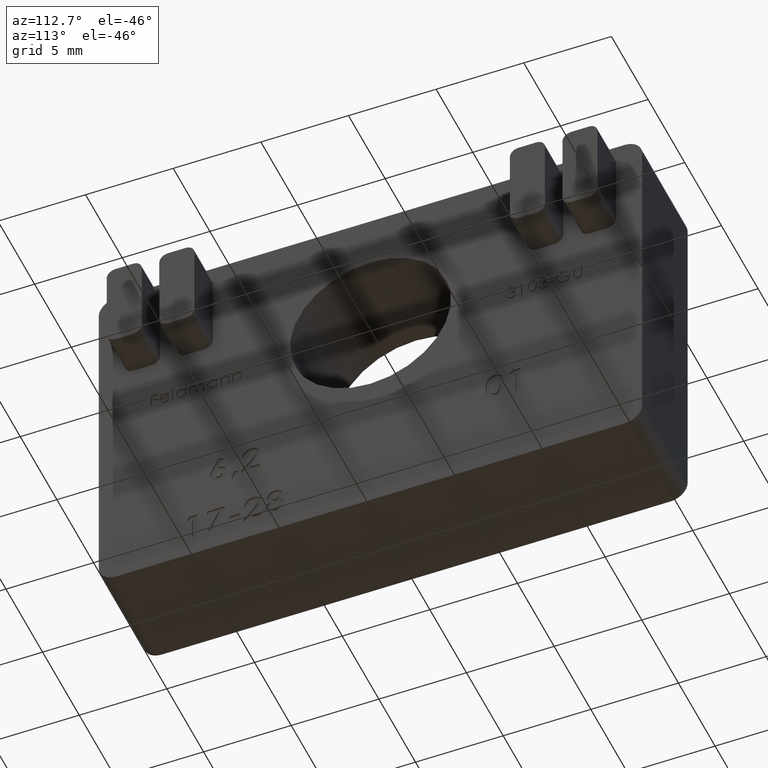
[diagram: clean part render]
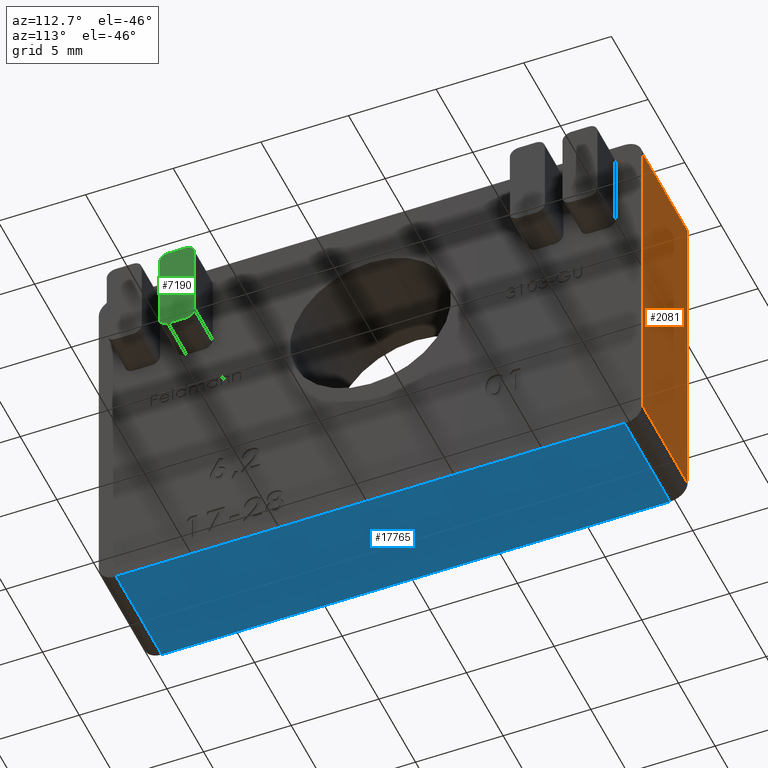
[diagram: same view with three faces highlighted in distinct colors, each labeled with its STEP entity id]
A machine part, auxiliary view with three faces highlighted in distinct colors.
Their STEP definitions:

[orange] entity #2081 — the highlighted planar face has unit normal (0, -1, 0).
#1908 = EDGE_LOOP ( 'NONE', ( #19513, #17515, #5127, #13391 ) ) ;
#2081 = ADVANCED_FACE ( 'NONE', ( #19953 ), #16869, .F. ) ;
#2174 = VERTEX_POINT ( 'NONE', #7096 ) ;
#4001 = CARTESIAN_POINT ( 'NONE',  ( 3.100000000000000089, 15.50000000000000355, 9.550000000000006040 ) ) ;
#4761 = LINE ( 'NONE', #4001, #20109 ) ;
#4869 = CARTESIAN_POINT ( 'NONE',  ( 3.100000000000000089, 15.50000000000000355, -9.549999999999991829 ) ) ;
#5127 = ORIENTED_EDGE ( 'NONE', *, *, #19994, .F. ) ;
#5179 = CARTESIAN_POINT ( 'NONE',  ( -3.100000000000000089, 15.50000000000000355, 9.550000000000006040 ) ) ;
#5324 = DIRECTION ( 'NONE',  ( 0.000000000000000000, -1.000000000000000000, 0.000000000000000000 ) ) ;
#6664 = DIRECTION ( 'NONE',  ( 0.000000000000000000, -0.000000000000000000, -1.000000000000000000 ) ) ;
#7096 = CARTESIAN_POINT ( 'NONE',  ( 3.100000000000000089, 15.50000000000000355, -9.549999999999991829 ) ) ;
#7549 = LINE ( 'NONE', #4869, #10999 ) ;
#7938 = CARTESIAN_POINT ( 'NONE',  ( 3.100000000000000089, 15.50000000000000355, 9.550000000000006040 ) ) ;
#8436 = CARTESIAN_POINT ( 'NONE',  ( 3.100000000000000089, 15.50000000000000355, 9.550000000000006040 ) ) ;
#10152 = CARTESIAN_POINT ( 'NONE',  ( 3.100000000000000089, 15.50000000000000355, 9.550000000000006040 ) ) ;
#10425 = CARTESIAN_POINT ( 'NONE',  ( -3.100000000000000089, 15.50000000000000355, 9.550000000000006040 ) ) ;
#10666 = DIRECTION ( 'NONE',  ( -0.000000000000000000, -0.000000000000000000, 1.000000000000000000 ) ) ;
#10921 = VERTEX_POINT ( 'NONE', #10152 ) ;
#10999 = VECTOR ( 'NONE', #19900, 1000.000000000000000 ) ;
#11283 = VERTEX_POINT ( 'NONE', #10425 ) ;
#11348 = DIRECTION ( 'NONE',  ( -1.000000000000000000, -0.000000000000000000, -0.000000000000000000 ) ) ;
#12713 = VECTOR ( 'NONE', #11348, 1000.000000000000000 ) ;
#13255 = EDGE_CURVE ( 'NONE', #2174, #19584, #7549, .T. ) ;
#13391 = ORIENTED_EDGE ( 'NONE', *, *, #13255, .T. ) ;
#13642 = EDGE_CURVE ( 'NONE', #19584, #11283, #15776, .T. ) ;
#15106 = AXIS2_PLACEMENT_3D ( 'NONE', #8436, #5324, #6664 ) ;
#15776 = LINE ( 'NONE', #5179, #17083 ) ;
#16869 = PLANE ( 'NONE',  #15106 ) ;
#17083 = VECTOR ( 'NONE', #18287, 1000.000000000000000 ) ;
#17215 = LINE ( 'NONE', #7938, #12713 ) ;
#17515 = ORIENTED_EDGE ( 'NONE', *, *, #19856, .F. ) ;
#18287 = DIRECTION ( 'NONE',  ( -0.000000000000000000, -0.000000000000000000, 1.000000000000000000 ) ) ;
#19045 = CARTESIAN_POINT ( 'NONE',  ( -3.100000000000000089, 15.50000000000000355, -9.549999999999991829 ) ) ;
#19513 = ORIENTED_EDGE ( 'NONE', *, *, #13642, .T. ) ;
#19584 = VERTEX_POINT ( 'NONE', #19045 ) ;
#19856 = EDGE_CURVE ( 'NONE', #10921, #11283, #17215, .T. ) ;
#19900 = DIRECTION ( 'NONE',  ( -1.000000000000000000, -0.000000000000000000, -0.000000000000000000 ) ) ;
#19953 = FACE_OUTER_BOUND ( 'NONE', #1908, .T. ) ;
#19994 = EDGE_CURVE ( 'NONE', #2174, #10921, #4761, .T. ) ;
#20109 = VECTOR ( 'NONE', #10666, 1000.000000000000000 ) ;

[blue] entity #17765 — the highlighted planar face has unit normal (0, -0, 1).
#710 = DIRECTION ( 'NONE',  ( -0.000000000000000000, 1.000000000000000000, 2.392722035830078972E-16 ) ) ;
#2246 = EDGE_CURVE ( 'NONE', #14741, #18322, #21014, .T. ) ;
#3858 = CARTESIAN_POINT ( 'NONE',  ( -3.100000000000000089, 14.50000000000000178, -10.54999999999999361 ) ) ;
#4717 = AXIS2_PLACEMENT_3D ( 'NONE', #10223, #6750, #22005 ) ;
#4824 = LINE ( 'NONE', #20546, #13303 ) ;
#4902 = VECTOR ( 'NONE', #5972, 1000.000000000000000 ) ;
#5114 = VECTOR ( 'NONE', #710, 1000.000000000000000 ) ;
#5972 = DIRECTION ( 'NONE',  ( -1.000000000000000000, -0.000000000000000000, -0.000000000000000000 ) ) ;
#6521 = VERTEX_POINT ( 'NONE', #19890 ) ;
#6750 = DIRECTION ( 'NONE',  ( 0.000000000000000000, -2.392722035830078479E-16, 1.000000000000000000 ) ) ;
#7600 = ORIENTED_EDGE ( 'NONE', *, *, #14378, .T. ) ;
#8954 = DIRECTION ( 'NONE',  ( -0.000000000000000000, 1.000000000000000000, 2.392722035830078972E-16 ) ) ;
#9121 = CARTESIAN_POINT ( 'NONE',  ( 3.100000000000000089, -14.49999999999999822, -10.55000000000000071 ) ) ;
#9166 = CARTESIAN_POINT ( 'NONE',  ( 3.100000000000000089, 14.50000000000000178, -10.54999999999999361 ) ) ;
#10223 = CARTESIAN_POINT ( 'NONE',  ( 3.100000000000000089, 14.50000000000000178, -10.54999999999999361 ) ) ;
#12989 = ORIENTED_EDGE ( 'NONE', *, *, #18045, .F. ) ;
#13303 = VECTOR ( 'NONE', #13374, 1000.000000000000000 ) ;
#13374 = DIRECTION ( 'NONE',  ( -1.000000000000000000, -0.000000000000000000, -0.000000000000000000 ) ) ;
#13681 = ORIENTED_EDGE ( 'NONE', *, *, #2246, .F. ) ;
#14378 = EDGE_CURVE ( 'NONE', #14741, #17193, #18400, .T. ) ;
#14741 = VERTEX_POINT ( 'NONE', #9121 ) ;
#15112 = EDGE_CURVE ( 'NONE', #17193, #6521, #20236, .T. ) ;
#15283 = CARTESIAN_POINT ( 'NONE',  ( -3.100000000000000089, -14.49999999999999822, -10.55000000000000071 ) ) ;
#16314 = CARTESIAN_POINT ( 'NONE',  ( 3.100000000000000089, 14.50000000000000178, -10.54999999999999361 ) ) ;
#17193 = VERTEX_POINT ( 'NONE', #15283 ) ;
#17467 = ORIENTED_EDGE ( 'NONE', *, *, #15112, .T. ) ;
#17765 = ADVANCED_FACE ( 'NONE', ( #18321 ), #20302, .F. ) ;
#17879 = CARTESIAN_POINT ( 'NONE',  ( 3.100000000000000089, -14.49999999999999822, -10.55000000000000071 ) ) ;
#18045 = EDGE_CURVE ( 'NONE', #18322, #6521, #4824, .T. ) ;
#18321 = FACE_OUTER_BOUND ( 'NONE', #21562, .T. ) ;
#18322 = VERTEX_POINT ( 'NONE', #16314 ) ;
#18400 = LINE ( 'NONE', #17879, #4902 ) ;
#19890 = CARTESIAN_POINT ( 'NONE',  ( -3.100000000000000089, 14.50000000000000178, -10.54999999999999361 ) ) ;
#20236 = LINE ( 'NONE', #3858, #20514 ) ;
#20302 = PLANE ( 'NONE',  #4717 ) ;
#20514 = VECTOR ( 'NONE', #8954, 1000.000000000000000 ) ;
#20546 = CARTESIAN_POINT ( 'NONE',  ( 3.100000000000000089, 14.50000000000000178, -10.54999999999999361 ) ) ;
#21014 = LINE ( 'NONE', #9166, #5114 ) ;
#21562 = EDGE_LOOP ( 'NONE', ( #17467, #12989, #13681, #7600 ) ) ;
#22005 = DIRECTION ( 'NONE',  ( 0.000000000000000000, -1.000000000000000000, -2.392722035830078479E-16 ) ) ;

[green] entity #7190 — the highlighted planar face has unit normal (1, 0, 0).
#216 = LINE ( 'NONE', #3184, #2612 ) ;
#409 = EDGE_CURVE ( 'NONE', #4928, #9452, #2758, .T. ) ;
#497 = AXIS2_PLACEMENT_3D ( 'NONE', #18311, #21799, #9800 ) ;
#632 = EDGE_CURVE ( 'NONE', #16719, #12143, #9105, .T. ) ;
#1324 = DIRECTION ( 'NONE',  ( 0.000000000000000000, 0.000000000000000000, -1.000000000000000000 ) ) ;
#1399 = DIRECTION ( 'NONE',  ( 1.000000000000000000, 0.000000000000000000, 0.000000000000000000 ) ) ;
#1835 = VERTEX_POINT ( 'NONE', #10612 ) ;
#2612 = VECTOR ( 'NONE', #20127, 1000.000000000000000 ) ;
#2685 = AXIS2_PLACEMENT_3D ( 'NONE', #5268, #6976, #20533 ) ;
#2758 = CIRCLE ( 'NONE', #4172, 0.5000000000000004441 ) ;
#2923 = FACE_OUTER_BOUND ( 'NONE', #11162, .T. ) ;
#3184 = CARTESIAN_POINT ( 'NONE',  ( 5.599999999999999645, -9.000000000000003553, 9.950000000000008171 ) ) ;
#3193 = CARTESIAN_POINT ( 'NONE',  ( 5.599999999999999645, -9.500000000000001776, 4.650000000000006573 ) ) ;
#3668 = ORIENTED_EDGE ( 'NONE', *, *, #12887, .T. ) ;
#4172 = AXIS2_PLACEMENT_3D ( 'NONE', #15871, #11082, #20301 ) ;
#4920 = CIRCLE ( 'NONE', #2685, 0.5000000000000004441 ) ;
#4928 = VERTEX_POINT ( 'NONE', #10525 ) ;
#4934 = DIRECTION ( 'NONE',  ( 0.000000000000000000, 0.000000000000000000, 1.000000000000000000 ) ) ;
#5268 = CARTESIAN_POINT ( 'NONE',  ( 5.599999999999999645, -10.49999999999999822, 5.150000000000006573 ) ) ;
#5791 = EDGE_CURVE ( 'NONE', #16719, #12092, #17474, .T. ) ;
#6976 = DIRECTION ( 'NONE',  ( 1.000000000000000000, 0.000000000000000000, 0.000000000000000000 ) ) ;
#7131 = ORIENTED_EDGE ( 'NONE', *, *, #632, .F. ) ;
#7176 = DIRECTION ( 'NONE',  ( 0.000000000000000000, 1.000000000000000000, 0.000000000000000000 ) ) ;
#7190 = ADVANCED_FACE ( 'NONE', ( #2923 ), #11545, .T. ) ;
#7591 = LINE ( 'NONE', #18880, #8645 ) ;
#8160 = VECTOR ( 'NONE', #4934, 1000.000000000000000 ) ;
#8511 = ORIENTED_EDGE ( 'NONE', *, *, #11946, .F. ) ;
#8512 = CARTESIAN_POINT ( 'NONE',  ( 5.599999999999999645, -10.49999999999999822, 9.950000000000008171 ) ) ;
#8645 = VECTOR ( 'NONE', #7176, 1000.000000000000000 ) ;
#8967 = ORIENTED_EDGE ( 'NONE', *, *, #9047, .F. ) ;
#9047 = EDGE_CURVE ( 'NONE', #1835, #18609, #18757, .T. ) ;
#9105 = LINE ( 'NONE', #16157, #16795 ) ;
#9452 = VERTEX_POINT ( 'NONE', #13137 ) ;
#9800 = DIRECTION ( 'NONE',  ( 0.000000000000000000, 0.000000000000000000, -1.000000000000000000 ) ) ;
#10287 = ORIENTED_EDGE ( 'NONE', *, *, #12682, .T. ) ;
#10525 = CARTESIAN_POINT ( 'NONE',  ( 5.599999999999999645, -9.000000000000003553, 9.450000000000006395 ) ) ;
#10612 = CARTESIAN_POINT ( 'NONE',  ( 5.599999999999999645, -11.00000000000000000, 5.150000000000006573 ) ) ;
#11082 = DIRECTION ( 'NONE',  ( 1.000000000000000000, 0.000000000000000000, 0.000000000000000000 ) ) ;
#11126 = DIRECTION ( 'NONE',  ( 0.000000000000000000, -1.000000000000000000, 0.000000000000000000 ) ) ;
#11162 = EDGE_LOOP ( 'NONE', ( #8511, #3668, #8967, #10287, #7131, #14309, #15797, #12344 ) ) ;
#11545 = PLANE ( 'NONE',  #14300 ) ;
#11946 = EDGE_CURVE ( 'NONE', #13601, #9452, #7591, .T. ) ;
#12092 = VERTEX_POINT ( 'NONE', #19533 ) ;
#12143 = VERTEX_POINT ( 'NONE', #19760 ) ;
#12344 = ORIENTED_EDGE ( 'NONE', *, *, #409, .T. ) ;
#12682 = EDGE_CURVE ( 'NONE', #1835, #12143, #4920, .T. ) ;
#12887 = EDGE_CURVE ( 'NONE', #13601, #18609, #15521, .T. ) ;
#13137 = CARTESIAN_POINT ( 'NONE',  ( 5.599999999999999645, -9.500000000000003553, 9.950000000000008171 ) ) ;
#13601 = VERTEX_POINT ( 'NONE', #8512 ) ;
#14300 = AXIS2_PLACEMENT_3D ( 'NONE', #21625, #1399, #1324 ) ;
#14309 = ORIENTED_EDGE ( 'NONE', *, *, #5791, .T. ) ;
#15521 = CIRCLE ( 'NONE', #15602, 0.5000000000000004441 ) ;
#15602 = AXIS2_PLACEMENT_3D ( 'NONE', #20069, #21568, #18358 ) ;
#15797 = ORIENTED_EDGE ( 'NONE', *, *, #20119, .F. ) ;
#15871 = CARTESIAN_POINT ( 'NONE',  ( 5.599999999999999645, -9.500000000000003553, 9.450000000000006395 ) ) ;
#16157 = CARTESIAN_POINT ( 'NONE',  ( 5.599999999999999645, -11.00000000000000000, 4.650000000000006573 ) ) ;
#16719 = VERTEX_POINT ( 'NONE', #3193 ) ;
#16795 = VECTOR ( 'NONE', #11126, 1000.000000000000000 ) ;
#17474 = CIRCLE ( 'NONE', #497, 0.5000000000000004441 ) ;
#17689 = CARTESIAN_POINT ( 'NONE',  ( 5.599999999999999645, -11.00000000000000000, 9.450000000000006395 ) ) ;
#18311 = CARTESIAN_POINT ( 'NONE',  ( 5.599999999999999645, -9.500000000000001776, 5.150000000000006573 ) ) ;
#18358 = DIRECTION ( 'NONE',  ( 0.000000000000000000, 0.000000000000000000, -1.000000000000000000 ) ) ;
#18401 = CARTESIAN_POINT ( 'NONE',  ( 5.599999999999999645, -11.00000000000000000, 9.950000000000008171 ) ) ;
#18609 = VERTEX_POINT ( 'NONE', #17689 ) ;
#18757 = LINE ( 'NONE', #18401, #8160 ) ;
#18880 = CARTESIAN_POINT ( 'NONE',  ( 5.599999999999999645, -11.00000000000000000, 9.950000000000008171 ) ) ;
#19533 = CARTESIAN_POINT ( 'NONE',  ( 5.599999999999999645, -9.000000000000001776, 5.150000000000006573 ) ) ;
#19760 = CARTESIAN_POINT ( 'NONE',  ( 5.599999999999999645, -10.49999999999999822, 4.650000000000006573 ) ) ;
#20069 = CARTESIAN_POINT ( 'NONE',  ( 5.599999999999999645, -10.49999999999999822, 9.450000000000006395 ) ) ;
#20119 = EDGE_CURVE ( 'NONE', #4928, #12092, #216, .T. ) ;
#20127 = DIRECTION ( 'NONE',  ( 0.000000000000000000, 3.273063162220390326E-16, -1.000000000000000000 ) ) ;
#20301 = DIRECTION ( 'NONE',  ( 0.000000000000000000, 0.000000000000000000, -1.000000000000000000 ) ) ;
#20533 = DIRECTION ( 'NONE',  ( 0.000000000000000000, 0.000000000000000000, -1.000000000000000000 ) ) ;
#21568 = DIRECTION ( 'NONE',  ( 1.000000000000000000, 0.000000000000000000, 0.000000000000000000 ) ) ;
#21625 = CARTESIAN_POINT ( 'NONE',  ( 5.599999999999999645, 0.000000000000000000, 0.000000000000000000 ) ) ;
#21799 = DIRECTION ( 'NONE',  ( 1.000000000000000000, 0.000000000000000000, 0.000000000000000000 ) ) ;